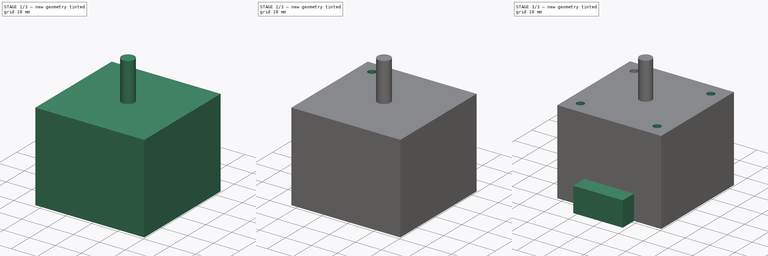
[diagram: build sequence overview — one tinted view per stage of 3, left to right]
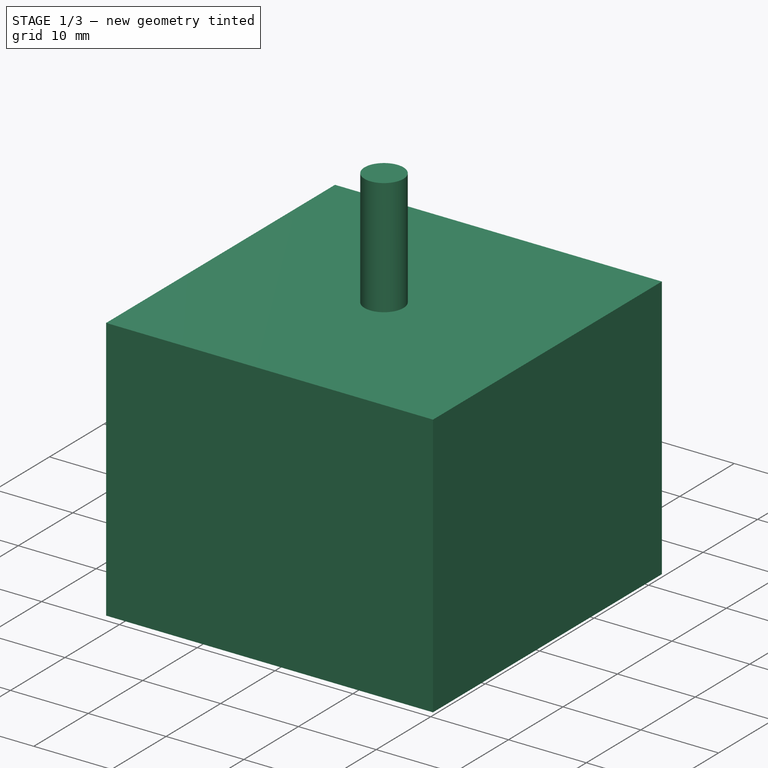
[diagram: stage 1 of 3 — iso view after this stage's code; geometry added in this stage tinted green]
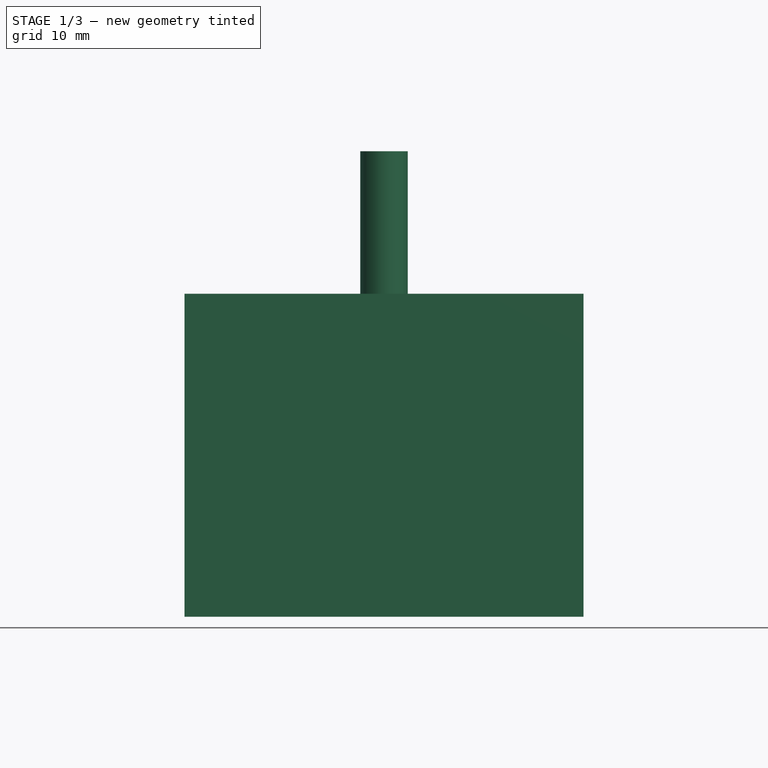
[diagram: stage 1 of 3 — front view after this stage's code; geometry added in this stage tinted green]
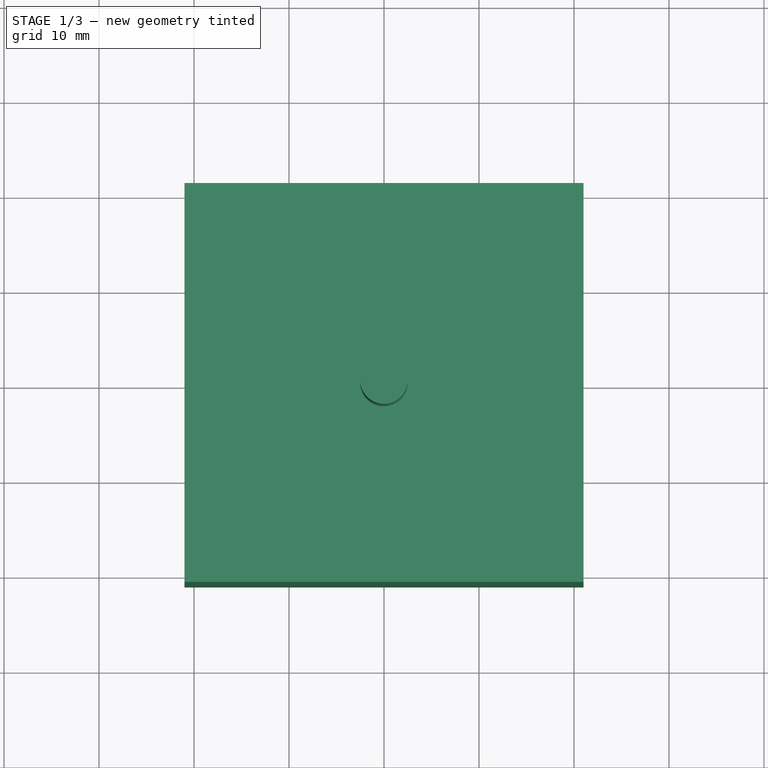
[diagram: stage 1 of 3 — top view after this stage's code; geometry added in this stage tinted green]
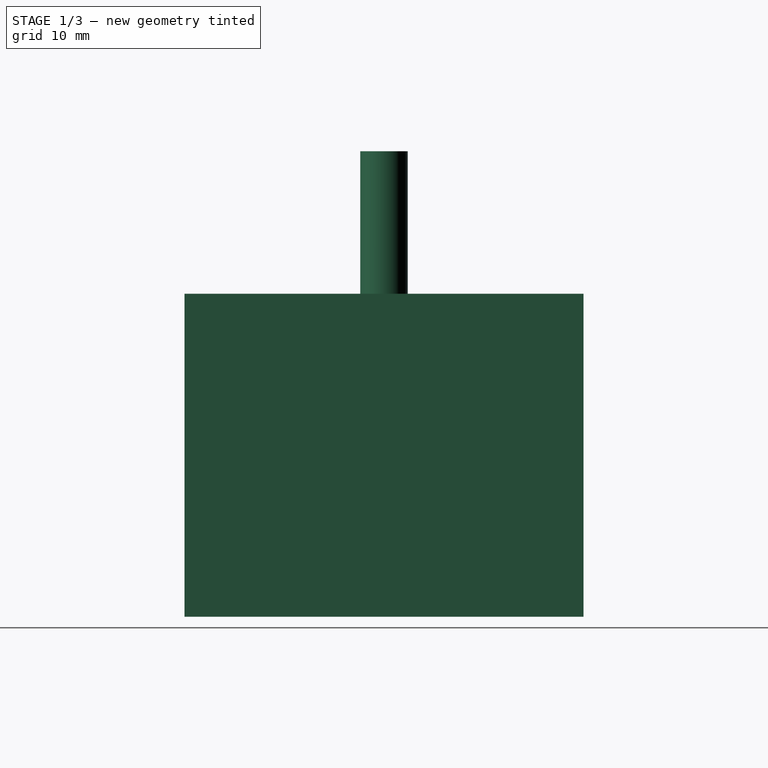
[diagram: stage 1 of 3 — right view after this stage's code; geometry added in this stage tinted green]
FCSTD DOCUMENT  (FreeCAD 1.0R39319 (Git))
Label: MainStepper
License: All rights reserved
LicenseURL: https://en.wikipedia.org/wiki/All_rights_reserved
objects: Sketcher::SketchObject×4, PartDesign::Pad×3, PartDesign::Pocket×1, PartDesign::PolarPattern×1, PartDesign::Body×1, App::Link×1, App::LinkGroup×1
note: 23 computed .brp shape members not serialized (recipe doc carries the construction recipe); baked Part::Feature solids carry a one-line shape summary decoded from their .brp
EXTERNAL_REF file=GT2_20.FCStd obj=Gear

FEATURE [Sketcher::SketchObject] Sketch007
  ArcFitTolerance = 1e-06
  AttachmentSupport = -> [XY_Plane001]
  FullyConstrained = true
  MakeInternals = false
  MapMode = 5
  sketch-geometry (5):
    g0: LineSegment StartX=21 StartY=-21 StartZ=0 EndX=21 EndY=21 EndZ=0
    g1: LineSegment StartX=21 StartY=21 StartZ=0 EndX=-21 EndY=21 EndZ=0
    g2: LineSegment StartX=-21 StartY=21 StartZ=0 EndX=-21 EndY=-21 EndZ=0
    g3: LineSegment StartX=-21 StartY=-21 StartZ=0 EndX=21 EndY=-21 EndZ=0
    g4: GeomPoint [constr] X=0 Y=0 Z=0
  constraints (12):
    c: Coincident(g0,g1)
    c: Coincident(g1,g2)
    c: Coincident(g2,g3)
    c: Coincident(g3,g0)
    c: Vertical(g0)
    c: Vertical(g2)
    c: Horizontal(g1)
    c: Horizontal(g3)
    c: Symmetric(g2,g0,g4)
    c: Coincident(g4,g-1)
    c: Distance(g-1,g1) = 21
    c: Distance(g-2,g2) = 21
FEATURE [PartDesign::Pad] Pad005
  Direction = (0,0,1)
  Length = 34
  Length2 = 10
  Profile = -> Sketch007
  ReferenceAxis = -> Sketch007 [N_Axis]
  Refine = true
  Suppressed = false
  Type = 0
FEATURE [Sketcher::SketchObject] Sketch008
  ArcFitTolerance = 1e-06
  AttachmentSupport = -> [Pad005]
  FullyConstrained = true
  MakeInternals = false
  MapMode = 5
  Placement = pos=(0,0,34) rot=(0,0,1;0rad)
  sketch-geometry (1):
    g0: Circle CenterX=0 CenterY=0 CenterZ=0 NormalX=0 NormalY=0 NormalZ=1 AngleXU=0 Radius=2.5
  constraints (2):
    c: Coincident(g0,g-1)
    c: Diameter(g0) = 5
FEATURE [PartDesign::Pad] Pad006
  BaseFeature = -> Pad005
  Direction = (0,0,1)
  Length = 15
  Length2 = 10
  Profile = -> Sketch008
  ReferenceAxis = -> Sketch008 [N_Axis]
  Refine = true
  Suppressed = false
  Type = 0
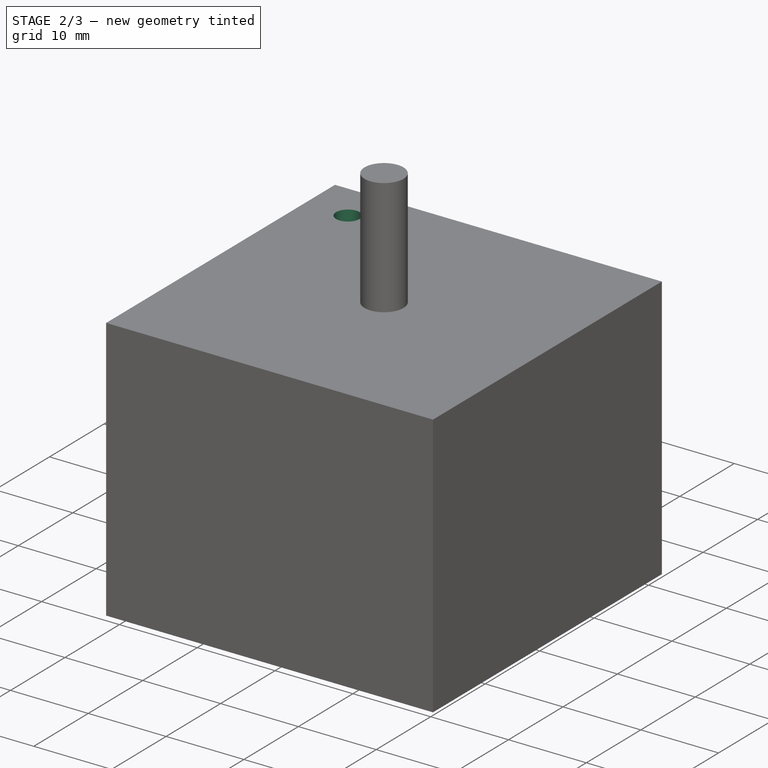
[diagram: stage 2 of 3 — iso view after this stage's code; geometry added in this stage tinted green]
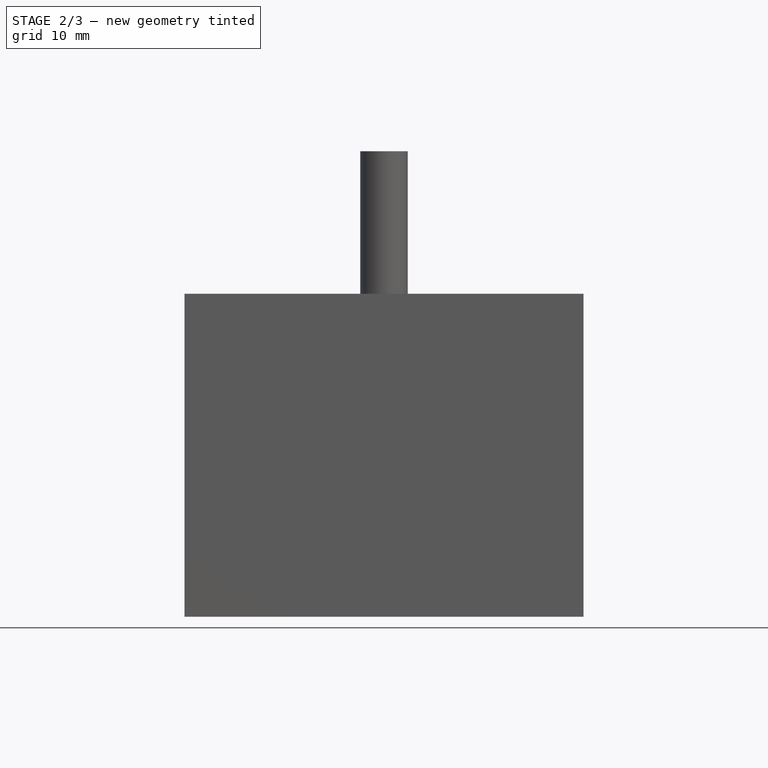
[diagram: stage 2 of 3 — front view after this stage's code; geometry added in this stage tinted green]
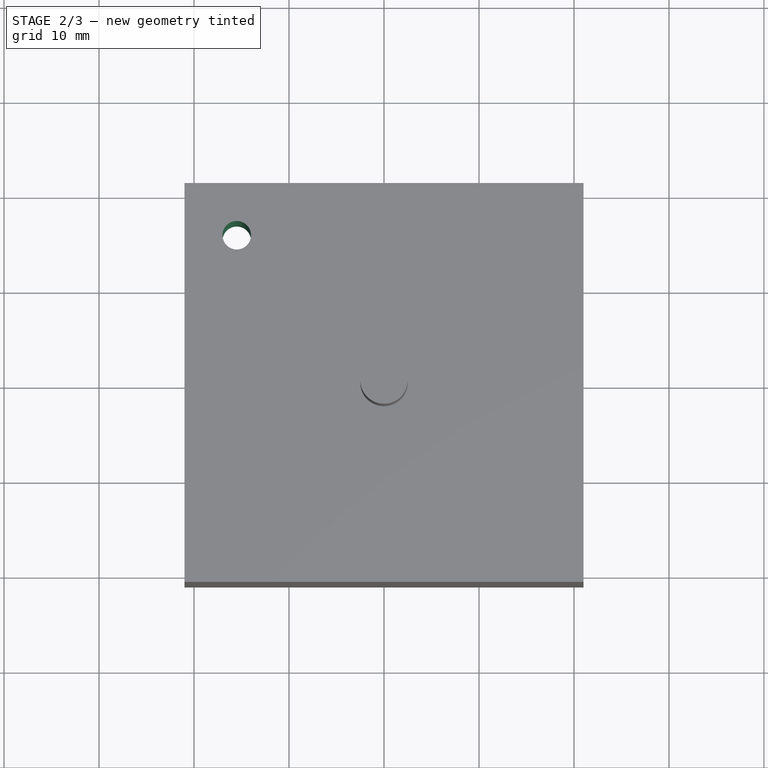
[diagram: stage 2 of 3 — top view after this stage's code; geometry added in this stage tinted green]
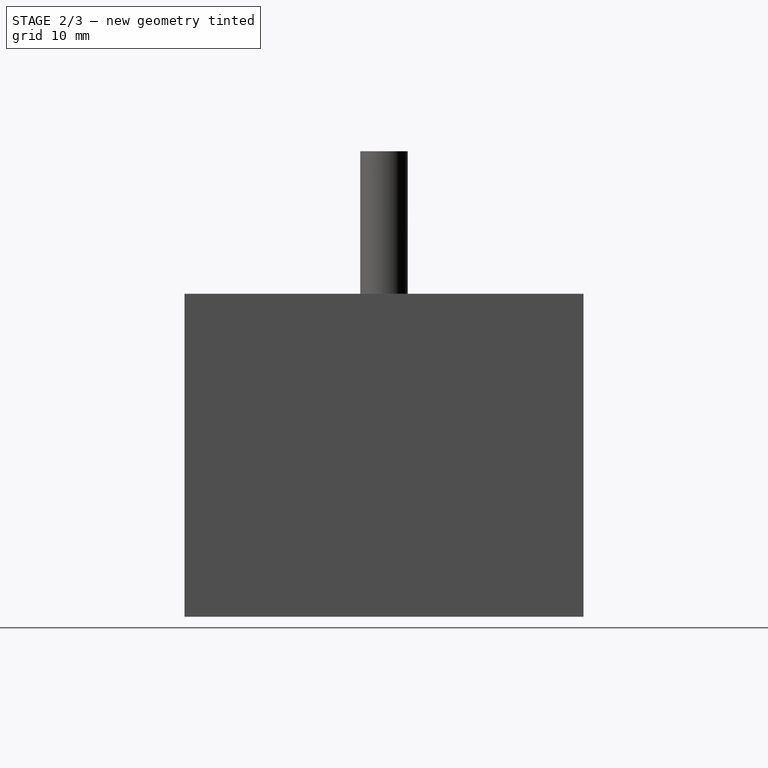
[diagram: stage 2 of 3 — right view after this stage's code; geometry added in this stage tinted green]
FEATURE [Sketcher::SketchObject] Sketch009
  ArcFitTolerance = 1e-06
  AttachmentSupport = -> [Pad006]
  FullyConstrained = true
  MakeInternals = false
  MapMode = 5
  Placement = pos=(0,0,34) rot=(0,0,1;0rad)
  sketch-geometry (1):
    g0: Circle CenterX=-15.5 CenterY=15.5 CenterZ=0 NormalX=0 NormalY=0 NormalZ=1 AngleXU=0 Radius=1.5
  constraints (3):
    c: Distance(g0,g-2) = 15.5
    c: DistanceY(g-1,g0) = 15.5
    c: Diameter(g0) = 3
FEATURE [PartDesign::Pocket] Pocket002
  BaseFeature = -> Pad006
  Direction = (0,0,-1)
  Length = 5
  Length2 = 5
  Profile = -> Sketch009
  ReferenceAxis = -> Sketch009 [N_Axis]
  Refine = true
  Suppressed = false
  Type = 1
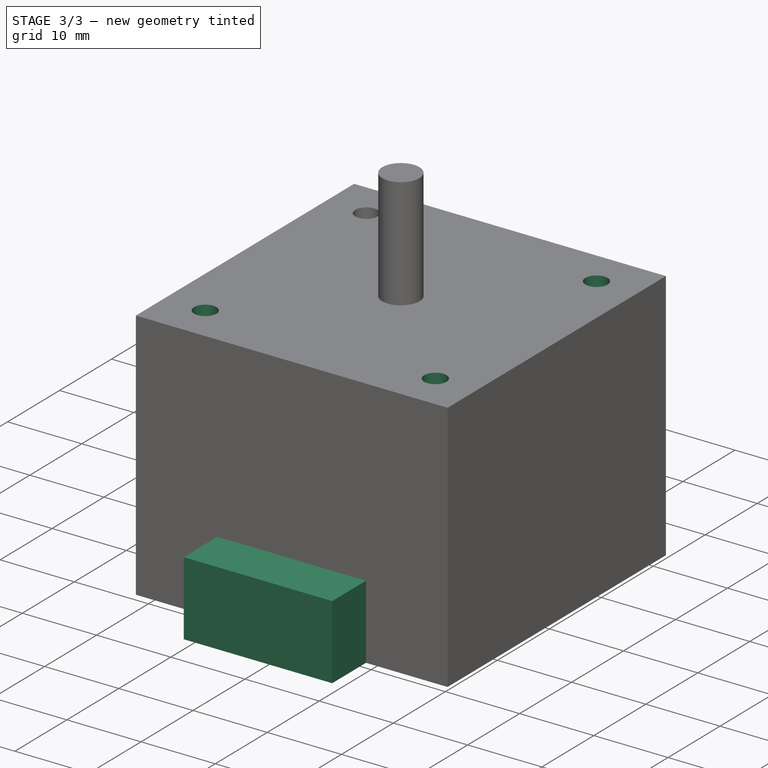
[diagram: stage 3 of 3 — iso view after this stage's code; geometry added in this stage tinted green]
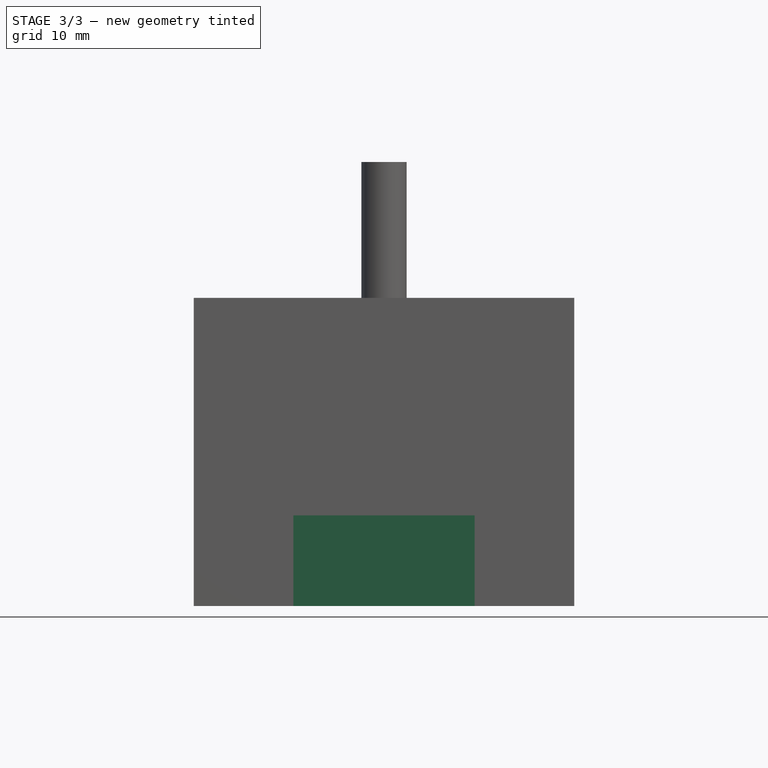
[diagram: stage 3 of 3 — front view after this stage's code; geometry added in this stage tinted green]
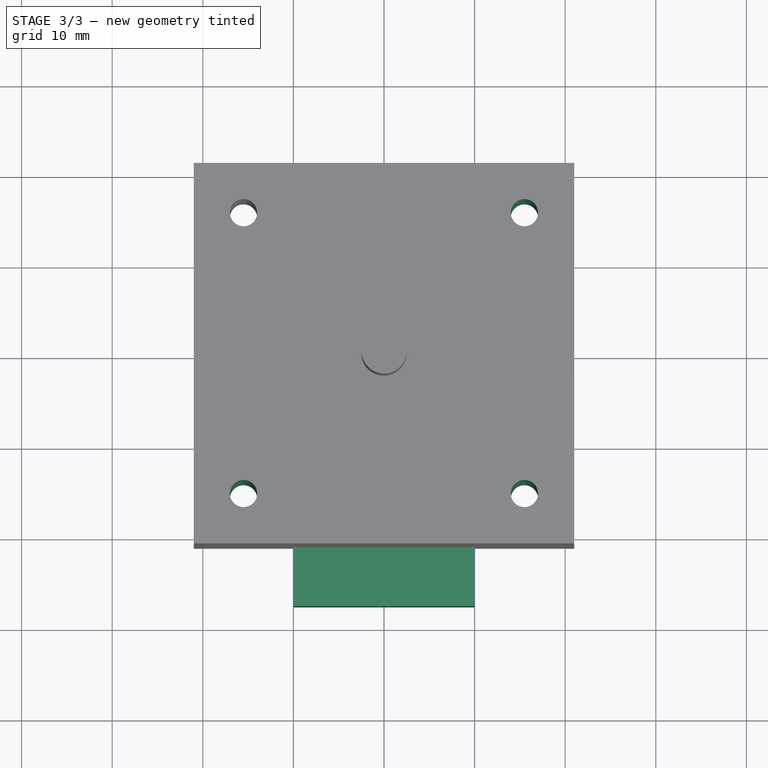
[diagram: stage 3 of 3 — top view after this stage's code; geometry added in this stage tinted green]
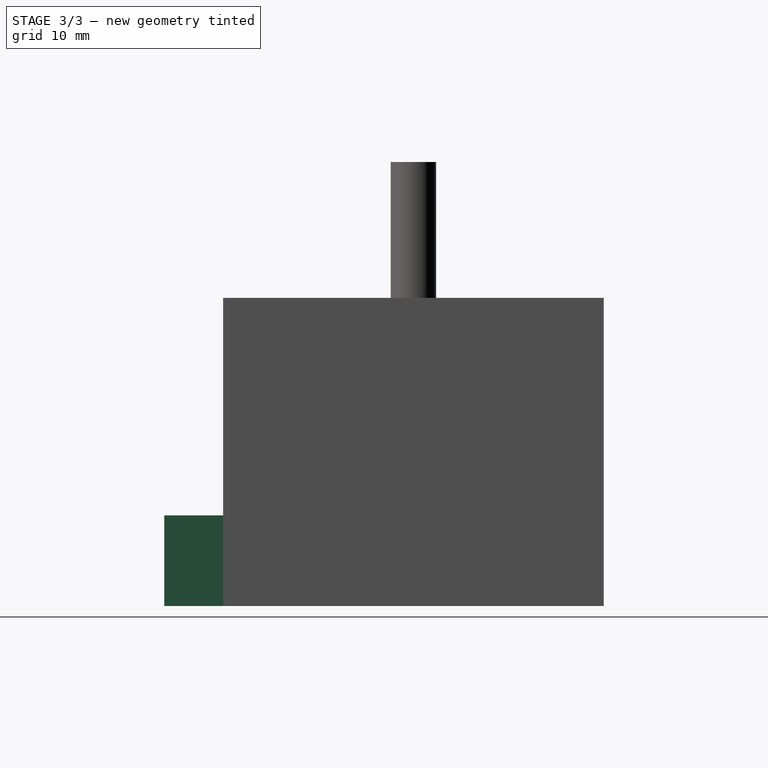
[diagram: stage 3 of 3 — right view after this stage's code; geometry added in this stage tinted green]
FEATURE [PartDesign::PolarPattern] PolarPattern
  Angle = 360
  Axis = -> Sketch009 [N_Axis]
  BaseFeature = -> Pocket002
  Mode = 0
  Occurrences = 4
  Offset = 120
  Originals = -> [Pocket002]
  Refine = true
  Suppressed = false
  TransformMode = 0
FEATURE [Sketcher::SketchObject] Sketch010
  ArcFitTolerance = 1e-06
  AttachmentSupport = -> [PolarPattern]
  ExternalGeometry = -> [Sketch007]
  FullyConstrained = false
  MakeInternals = false
  MapMode = 5
  Placement = pos=(0,0,0) rot=(1,0,0;3.14159rad)
  sketch-geometry (5):
    g0: LineSegment StartX=-10 StartY=14.4954 StartZ=0 EndX=10 EndY=14.4954 EndZ=0
    g1: LineSegment StartX=10 StartY=14.4954 StartZ=0 EndX=10 EndY=27.4954 EndZ=0
    g2: LineSegment StartX=10 StartY=27.4954 StartZ=0 EndX=-10 EndY=27.4954 EndZ=0
    g3: LineSegment StartX=-10 StartY=27.4954 StartZ=0 EndX=-10 EndY=14.4954 EndZ=0
    g4: GeomPoint [constr] X=0 Y=20.9954 Z=0
  constraints (12):
    c: Coincident(g0,g1)
    c: Coincident(g1,g2)
    c: Coincident(g2,g3)
    c: Coincident(g3,g0)
    c: Horizontal(g0)
    c: Horizontal(g2)
    c: Vertical(g1)
    c: Vertical(g3)
    c: Symmetric(g2,g0,g4)
    c: Distance(g1,g3) = 20
    c: Distance(g0,g2) = 13
    c: PointOnObject(g4,g-2)
FEATURE [PartDesign::Pad] Pad
  BaseFeature = -> PolarPattern
  Direction = (0,0,-1)
  Length = 10
  Length2 = 10
  Profile = -> Sketch010
  ReferenceAxis = -> Sketch010 [N_Axis]
  Refine = true
  Reversed = true
  Suppressed = false
  Type = 0
FEATURE [PartDesign::Body] Body001  label="Nema17"
  AllowCompound = false
  Group = -> [Sketch007,Pad005,Sketch008,Pad006,Sketch009,Pocket002,PolarPattern,Sketch010,Pad]
  Origin = -> Origin001
  Placement = pos=(0,0,0) rot=(0,0,1;3.14159rad)
  Tip = -> Pad
FEATURE [App::Link] Link  label="GT2_Second_Min"
  LinkPlacement = pos=(0,0,36) rot=(0,0,1;0rad)
  LinkedObject = -> <external GT2_20.FCStd>#Gear
  Placement = pos=(0,0,36) rot=(0,0,1;0rad)
FEATURE [App::LinkGroup] LinkGroup  label="MainStepper"
  ElementList = -> [Body001,Link]
  LinkMode = 0

RESOLVED EXTERNAL PARTS (link-assembly join: the EXTERNAL_REF files above that resolve inside this repo's crawl, each included once):
---- part GT2_20.FCStd = doc fcstd_1a6df01b9b0f ----
FCSTD DOCUMENT  (FreeCAD 1.0R39319 (Git))
Label: GT2_20
License: All rights reserved
LicenseURL: https://en.wikipedia.org/wiki/All_rights_reserved
objects: Sketcher::SketchObject×3, PartDesign::Pad×3, PartDesign::Body×1
note: 16 computed .brp shape members not serialized (recipe doc carries the construction recipe); baked Part::Feature solids carry a one-line shape summary decoded from their .brp

FEATURE [Sketcher::SketchObject] SketchGear
  ArcFitTolerance = 1e-06
  FullyConstrained = false
  MakeInternals = false
  MapMode = 5
  Placement = pos=(0,0,7.5) rot=(0,0,1;0rad)
  sketch-geometry (121):
    g0: ArcOfCircle CenterX=5.9622 CenterY=-0.75 CenterZ=0 NormalX=0 NormalY=0 NormalZ=1 AngleXU=8.1e-15 Radius=0.15 StartAngle=0 EndAngle=1.5708
    g1: ArcOfCircle CenterX=6.30816 CenterY=0.82798 CenterZ=0 NormalX=0 NormalY=0 NormalZ=-1 AngleXU=-1.3331 Radius=1.46929 StartAngle=0 EndAngle=0.255762
    g2: ArcOfCircle CenterX=5.92156 CenterY=0 CenterZ=0 NormalX=0 NormalY=0 NormalZ=-1 AngleXU=-0.984764 Radius=0.559359 StartAngle=0 EndAngle=1.96953
    g3: ArcOfCircle CenterX=6.30816 CenterY=-0.82798 CenterZ=0 NormalX=0 NormalY=0 NormalZ=-1 AngleXU=1.07734 Radius=1.46929 StartAngle=0 EndAngle=0.255762
    g4: ArcOfCircle CenterX=5.9622 CenterY=0.75 CenterZ=0 NormalX=0 NormalY=0 NormalZ=1 AngleXU=-1.5708 Radius=0.15 StartAngle=0 EndAngle=1.5708
    g5: LineSegment StartX=6.1122 StartY=0.75 StartZ=0 EndX=6.04481 EndY=1.17548 EndZ=0
    g6: ArcOfCircle CenterX=5.90215 CenterY=1.12913 CenterZ=0 NormalX=0 NormalY=0 NormalZ=1 AngleXU=0.314159 Radius=0.15 StartAngle=0 EndAngle=1.5708
    g7: ArcOfCircle CenterX=5.74356 CenterY=2.73679 CenterZ=0 NormalX=0 NormalY=0 NormalZ=-1 AngleXU=-1.64726 Radius=1.46929 StartAngle=0 EndAngle=0.255762
    g8: ArcOfCircle CenterX=5.63174 CenterY=1.82986 CenterZ=0 NormalX=0 NormalY=0 NormalZ=-1 AngleXU=-1.29892 Radius=0.559359 StartAngle=0 EndAngle=1.96953
    g9: ArcOfCircle CenterX=6.25528 CenterY=1.16187 CenterZ=0 NormalX=0 NormalY=0 NormalZ=-1 AngleXU=0.763178 Radius=1.46929 StartAngle=0 EndAngle=0.255762
    g10: ArcOfCircle CenterX=5.43862 CenterY=2.55571 CenterZ=0 NormalX=0 NormalY=0 NormalZ=1 AngleXU=-1.25664 Radius=0.15 StartAngle=0 EndAngle=1.5708
    g11: LineSegment StartX=5.58128 StartY=2.60207 StartZ=0 EndX=5.38571 EndY=2.9859 EndZ=0
    g12: ArcOfCircle CenterX=5.26436 CenterY=2.89773 CenterZ=0 NormalX=0 NormalY=0 NormalZ=1 AngleXU=0.628319 Radius=0.15 StartAngle=0 EndAngle=1.5708
    g13: ArcOfCircle CenterX=4.61674 CenterY=4.3777 CenterZ=0 NormalX=0 NormalY=0 NormalZ=-1 AngleXU=-1.96142 Radius=1.46929 StartAngle=0 EndAngle=0.255762
    g14: ArcOfCircle CenterX=4.79064 CenterY=3.4806 CenterZ=0 NormalX=0 NormalY=0 NormalZ=-1 AngleXU=-1.61308 Radius=0.559359 StartAngle=0 EndAngle=1.96953
    g15: ArcOfCircle CenterX=5.59009 CenterY=3.038 CenterZ=0 NormalX=0 NormalY=0 NormalZ=-1 AngleXU=0.449019 Radius=1.46929 StartAngle=0 EndAngle=0.255762
    g16: ArcOfCircle CenterX=4.38268 CenterY=4.11125 CenterZ=0 NormalX=0 NormalY=0 NormalZ=1 AngleXU=-0.942478 Radius=0.15 StartAngle=0 EndAngle=1.5708
    g17: LineSegment StartX=4.50403 StartY=4.19942 StartZ=0 EndX=4.19942 EndY=4.50403 EndZ=0
    g18: ArcOfCircle CenterX=4.11125 CenterY=4.38268 CenterZ=0 NormalX=0 NormalY=0 NormalZ=1 AngleXU=0.942478 Radius=0.15 StartAngle=0 EndAngle=1.5708
    g19: ArcOfCircle CenterX=3.038 CenterY=5.59009 CenterZ=0 NormalX=0 NormalY=0 NormalZ=-1 AngleXU=-2.27558 Radius=1.46929 StartAngle=0 EndAngle=0.255762
    g20: ArcOfCircle CenterX=3.4806 CenterY=4.79064 CenterZ=0 NormalX=0 NormalY=0 NormalZ=-1 AngleXU=-1.92724 Radius=0.559359 StartAngle=0 EndAngle=1.96953
    g21: ArcOfCircle CenterX=4.3777 CenterY=4.61674 CenterZ=0 NormalX=0 NormalY=0 NormalZ=-1 AngleXU=0.13486 Radius=1.46929 StartAngle=0 EndAngle=0.255762
    g22: ArcOfCircle CenterX=2.89773 CenterY=5.26436 CenterZ=0 NormalX=0 NormalY=0 NormalZ=1 AngleXU=-0.628319 Radius=0.15 StartAngle=0 EndAngle=1.5708
    g23: LineSegment StartX=2.9859 StartY=5.38571 StartZ=0 EndX=2.60207 EndY=5.58128 EndZ=0
    g24: ArcOfCircle CenterX=2.55571 CenterY=5.43862 CenterZ=0 NormalX=0 NormalY=0 NormalZ=1 AngleXU=1.25664 Radius=0.15 StartAngle=0 EndAngle=1.5708
    g25: ArcOfCircle CenterX=1.16187 CenterY=6.25528 CenterZ=0 NormalX=0 NormalY=0 NormalZ=-1 AngleXU=-2.58974 Radius=1.46929 StartAngle=0 EndAngle=0.255762
    g26: ArcOfCircle CenterX=1.82986 CenterY=5.63174 CenterZ=0 NormalX=0 NormalY=0 NormalZ=-1 AngleXU=-2.2414 Radius=0.559359 StartAngle=0 EndAngle=1.96953
    g27: ArcOfCircle CenterX=2.73679 CenterY=5.74356 CenterZ=0 NormalX=0 NormalY=0 NormalZ=-1 AngleXU=-0.1793 Radius=1.46929 StartAngle=0 EndAngle=0.255762
    g28: ArcOfCircle CenterX=1.12913 CenterY=5.90215 CenterZ=0 NormalX=0 NormalY=0 NormalZ=1 AngleXU=-0.314159 Radius=0.15 StartAngle=0 EndAngle=1.5708
    g29: LineSegment StartX=1.17548 StartY=6.04481 StartZ=0 EndX=0.75 EndY=6.1122 EndZ=0
    g30: ArcOfCircle CenterX=0.75 CenterY=5.9622 CenterZ=0 NormalX=0 NormalY=0 NormalZ=1 AngleXU=1.5708 Radius=0.15 StartAngle=0 EndAngle=1.5708
    g31: ArcOfCircle CenterX=-0.82798 CenterY=6.30816 CenterZ=0 NormalX=0 NormalY=0 NormalZ=-1 AngleXU=-2.9039 Radius=1.46929 StartAngle=0 EndAngle=0.255762
    g32: ArcOfCircle CenterX=4e-16 CenterY=5.92156 CenterZ=0 NormalX=0 NormalY=0 NormalZ=-1 AngleXU=-2.55556 Radius=0.559359 StartAngle=0 EndAngle=1.96953
    g33: ArcOfCircle CenterX=0.82798 CenterY=6.30816 CenterZ=0 NormalX=0 NormalY=0 NormalZ=-1 AngleXU=-0.493459 Radius=1.46929 StartAngle=0 EndAngle=0.255762
    g34: ArcOfCircle CenterX=-0.75 CenterY=5.9622 CenterZ=0 NormalX=0 NormalY=0 NormalZ=1 AngleXU=5.9e-15 Radius=0.15 StartAngle=0 EndAngle=1.5708
    g35: LineSegment StartX=-0.75 StartY=6.1122 StartZ=0 EndX=-1.17548 EndY=6.04481 EndZ=0
    g36: ArcOfCircle CenterX=-1.12913 CenterY=5.90215 CenterZ=0 NormalX=0 NormalY=0 NormalZ=1 AngleXU=1.88496 Radius=0.15 StartAngle=0 EndAngle=1.5708
    g37: ArcOfCircle CenterX=-2.73679 CenterY=5.74356 CenterZ=0 NormalX=0 NormalY=0 NormalZ=-1 AngleXU=3.06513 Radius=1.46929 StartAngle=0 EndAngle=0.255762
    g38: ArcOfCircle CenterX=-1.82986 CenterY=5.63174 CenterZ=0 NormalX=0 NormalY=0 NormalZ=-1 AngleXU=-2.86972 Radius=0.559359 StartAngle=0 EndAngle=1.96953
    g39: ArcOfCircle CenterX=-1.16187 CenterY=6.25528 CenterZ=0 NormalX=0 NormalY=0 NormalZ=-1 AngleXU=-0.807618 Radius=1.46929 StartAngle=0 EndAngle=0.255762
    g40: ArcOfCircle CenterX=-2.55571 CenterY=5.43862 CenterZ=0 NormalX=0 NormalY=0 NormalZ=1 AngleXU=0.314159 Radius=0.15 StartAngle=0 EndAngle=1.5708
    g41: LineSegment StartX=-2.60207 StartY=5.58128 StartZ=0 EndX=-2.9859 EndY=5.38571 EndZ=0
    g42: ArcOfCircle CenterX=-2.89773 CenterY=5.26436 CenterZ=0 NormalX=0 NormalY=0 NormalZ=1 AngleXU=2.19911 Radius=0.15 StartAngle=0 EndAngle=1.5708
    g43: ArcOfCircle CenterX=-4.3777 CenterY=4.61674 CenterZ=0 NormalX=0 NormalY=0 NormalZ=-1 AngleXU=2.75097 Radius=1.46929 StartAngle=0 EndAngle=0.255762
    g44: ArcOfCircle CenterX=-3.4806 CenterY=4.79064 CenterZ=0 NormalX=0 NormalY=0 NormalZ=-1 AngleXU=3.09931 Radius=0.559359 StartAngle=0 EndAngle=1.96953
    g45: ArcOfCircle CenterX=-3.038 CenterY=5.59009 CenterZ=0 NormalX=0 NormalY=0 NormalZ=-1 AngleXU=-1.12178 Radius=1.46929 StartAngle=0 EndAngle=0.255762
    g46: ArcOfCircle CenterX=-4.11125 CenterY=4.38268 CenterZ=0 NormalX=0 NormalY=0 NormalZ=1 AngleXU=0.628319 Radius=0.15 StartAngle=0 EndAngle=1.5708
    g47: LineSegment StartX=-4.19942 StartY=4.50403 StartZ=0 EndX=-4.50403 EndY=4.19942 EndZ=0
    g48: ArcOfCircle CenterX=-4.38268 CenterY=4.11125 CenterZ=0 NormalX=0 NormalY=0 NormalZ=1 AngleXU=2.51327 Radius=0.15 StartAngle=0 EndAngle=1.5708
    g49: ArcOfCircle CenterX=-5.59009 CenterY=3.038 CenterZ=0 NormalX=0 NormalY=0 NormalZ=-1 AngleXU=2.43681 Radius=1.46929 StartAngle=0 EndAngle=0.255762
    g50: ArcOfCircle CenterX=-4.79064 CenterY=3.4806 CenterZ=0 NormalX=0 NormalY=0 NormalZ=-1 AngleXU=2.78515 Radius=0.559359 StartAngle=0 EndAngle=1.96953
    g51: ArcOfCircle CenterX=-4.61674 CenterY=4.3777 CenterZ=0 NormalX=0 NormalY=0 NormalZ=-1 AngleXU=-1.43594 Radius=1.46929 StartAngle=0 EndAngle=0.255762
    g52: ArcOfCircle CenterX=-5.26436 CenterY=2.89773 CenterZ=0 NormalX=0 NormalY=0 NormalZ=1 AngleXU=0.942478 Radius=0.15 StartAngle=0 EndAngle=1.5708
    g53: LineSegment StartX=-5.38571 StartY=2.9859 StartZ=0 EndX=-5.58128 EndY=2.60207 EndZ=0
    g54: ArcOfCircle CenterX=-5.43862 CenterY=2.55571 CenterZ=0 NormalX=0 NormalY=0 NormalZ=1 AngleXU=2.82743 Radius=0.15 StartAngle=0 EndAngle=1.5708
    g55: ArcOfCircle CenterX=-6.25528 CenterY=1.16187 CenterZ=0 NormalX=0 NormalY=0 NormalZ=-1 AngleXU=2.12265 Radius=1.46929 StartAngle=0 EndAngle=0.255762
    g56: ArcOfCircle CenterX=-5.63174 CenterY=1.82986 CenterZ=0 NormalX=0 NormalY=0 NormalZ=-1 AngleXU=2.47099 Radius=0.559359 StartAngle=0 EndAngle=1.96953
    g57: ArcOfCircle CenterX=-5.74356 CenterY=2.73679 CenterZ=0 NormalX=0 NormalY=0 NormalZ=-1 AngleXU=-1.7501 Radius=1.46929 StartAngle=0 EndAngle=0.255762
    g58: ArcOfCircle CenterX=-5.90215 CenterY=1.12913 CenterZ=0 NormalX=0 NormalY=0 NormalZ=1 AngleXU=1.25664 Radius=0.15 StartAngle=0 EndAngle=1.5708
    g59: LineSegment StartX=-6.04481 StartY=1.17548 StartZ=0 EndX=-6.1122 EndY=0.75 EndZ=0
    g60: ArcOfCircle CenterX=-5.9622 CenterY=0.75 CenterZ=0 NormalX=0 NormalY=0 NormalZ=1 AngleXU=-3.14159 Radius=0.15 StartAngle=0 EndAngle=1.5708
    g61: ArcOfCircle CenterX=-6.30816 CenterY=-0.82798 CenterZ=0 NormalX=0 NormalY=0 NormalZ=-1 AngleXU=1.80849 Radius=1.46929 StartAngle=0 EndAngle=0.255762
    g62: ArcOfCircle CenterX=-5.92156 CenterY=9e-16 CenterZ=0 NormalX=0 NormalY=0 NormalZ=-1 AngleXU=2.15683 Radius=0.559359 StartAngle=0 EndAngle=1.96953
    g63: ArcOfCircle CenterX=-6.30816 CenterY=0.82798 CenterZ=0 NormalX=0 NormalY=0 NormalZ=-1 AngleXU=-2.06426 Radius=1.46929 StartAngle=0 EndAngle=0.255762
    g64: ArcOfCircle CenterX=-5.9622 CenterY=-0.75 CenterZ=0 NormalX=0 NormalY=0 NormalZ=1 AngleXU=1.5708 Radius=0.15 StartAngle=0 EndAngle=1.5708
    g65: LineSegment StartX=-6.1122 StartY=-0.75 StartZ=0 EndX=-6.04481 EndY=-1.17548 EndZ=0
    g66: ArcOfCircle CenterX=-5.90215 CenterY=-1.12913 CenterZ=0 NormalX=0 NormalY=0 NormalZ=1 AngleXU=-2.82743 Radius=0.15 StartAngle=0 EndAngle=1.5708
    g67: ArcOfCircle CenterX=-5.74356 CenterY=-2.73679 CenterZ=0 NormalX=0 NormalY=0 NormalZ=-1 AngleXU=1.49433 Radius=1.46929 StartAngle=0 EndAngle=0.255762
    g68: ArcOfCircle CenterX=-5.63174 CenterY=-1.82986 CenterZ=0 NormalX=0 NormalY=0 NormalZ=-1 AngleXU=1.84267 Radius=0.559359 StartAngle=0 EndAngle=1.96953
    g69: ArcOfCircle CenterX=-6.25528 CenterY=-1.16187 CenterZ=0 NormalX=0 NormalY=0 NormalZ=-1 AngleXU=-2.37841 Radius=1.46929 StartAngle=0 EndAngle=0.255762
    g70: ArcOfCircle CenterX=-5.43862 CenterY=-2.55571 CenterZ=0 NormalX=0 NormalY=0 NormalZ=1 AngleXU=1.88496 Radius=0.15 StartAngle=0 EndAngle=1.5708
    g71: LineSegment StartX=-5.58128 StartY=-2.60207 StartZ=0 EndX=-5.38571 EndY=-2.9859 EndZ=0
    g72: ArcOfCircle CenterX=-5.26436 CenterY=-2.89773 CenterZ=0 NormalX=0 NormalY=0 NormalZ=1 AngleXU=-2.51327 Radius=0.15 StartAngle=0 EndAngle=1.5708
    g73: ArcOfCircle CenterX=-4.61674 CenterY=-4.3777 CenterZ=0 NormalX=0 NormalY=0 NormalZ=-1 AngleXU=1.18017 Radius=1.46929 StartAngle=0 EndAngle=0.255762
    g74: ArcOfCircle CenterX=-4.79064 CenterY=-3.4806 CenterZ=0 NormalX=0 NormalY=0 NormalZ=-1 AngleXU=1.52851 Radius=0.559359 StartAngle=0 EndAngle=1.96953
    g75: ArcOfCircle CenterX=-5.59009 CenterY=-3.038 CenterZ=0 NormalX=0 NormalY=0 NormalZ=-1 AngleXU=-2.69257 Radius=1.46929 StartAngle=0 EndAngle=0.255762
    g76: ArcOfCircle CenterX=-4.38268 CenterY=-4.11125 CenterZ=0 NormalX=0 NormalY=0 NormalZ=1 AngleXU=2.19911 Radius=0.15 StartAngle=0 EndAngle=1.5708
    g77: LineSegment StartX=-4.50403 StartY=-4.19942 StartZ=0 EndX=-4.19942 EndY=-4.50403 EndZ=0
    g78: ArcOfCircle CenterX=-4.11125 CenterY=-4.38268 CenterZ=0 NormalX=0 NormalY=0 NormalZ=1 AngleXU=-2.19911 Radius=0.15 StartAngle=0 EndAngle=1.5708
    g79: ArcOfCircle CenterX=-3.038 CenterY=-5.59009 CenterZ=0 NormalX=0 NormalY=0 NormalZ=-1 AngleXU=0.866016 Radius=1.46929 StartAngle=0 EndAngle=0.255762
    g80: ArcOfCircle CenterX=-3.4806 CenterY=-4.79064 CenterZ=0 NormalX=0 NormalY=0 NormalZ=-1 AngleXU=1.21435 Radius=0.559359 StartAngle=0 EndAngle=1.96953
    g81: ArcOfCircle CenterX=-4.3777 CenterY=-4.61674 CenterZ=0 NormalX=0 NormalY=0 NormalZ=-1 AngleXU=-3.00673 Radius=1.46929 StartAngle=0 EndAngle=0.255762
    g82: ArcOfCircle CenterX=-2.89773 CenterY=-5.26436 CenterZ=0 NormalX=0 NormalY=0 NormalZ=1 AngleXU=2.51327 Radius=0.15 StartAngle=0 EndAngle=1.5708
    g83: LineSegment StartX=-2.9859 StartY=-5.38571 StartZ=0 EndX=-2.60207 EndY=-5.58128 EndZ=0
    g84: ArcOfCircle CenterX=-2.55571 CenterY=-5.43862 CenterZ=0 NormalX=0 NormalY=0 NormalZ=1 AngleXU=-1.88496 Radius=0.15 StartAngle=0 EndAngle=1.5708
    g85: ArcOfCircle CenterX=-1.16187 CenterY=-6.25528 CenterZ=0 NormalX=0 NormalY=0 NormalZ=-1 AngleXU=0.551856 Radius=1.46929 StartAngle=0 EndAngle=0.255762
    g86: ArcOfCircle CenterX=-1.82986 CenterY=-5.63174 CenterZ=0 NormalX=0 NormalY=0 NormalZ=-1 AngleXU=0.900192 Radius=0.559359 StartAngle=0 EndAngle=1.96953
    g87: ArcOfCircle CenterX=-2.73679 CenterY=-5.74356 CenterZ=0 NormalX=0 NormalY=0 NormalZ=-1 AngleXU=2.96229 Radius=1.46929 StartAngle=0 EndAngle=0.255762
    g88: ArcOfCircle CenterX=-1.12913 CenterY=-5.90215 CenterZ=0 NormalX=0 NormalY=0 NormalZ=1 AngleXU=2.82743 Radius=0.15 StartAngle=0 EndAngle=1.5708
    g89: LineSegment StartX=-1.17548 StartY=-6.04481 StartZ=0 EndX=-0.75 EndY=-6.1122 EndZ=0
    g90: ArcOfCircle CenterX=-0.75 CenterY=-5.9622 CenterZ=0 NormalX=0 NormalY=0 NormalZ=1 AngleXU=-1.5708 Radius=0.15 StartAngle=0 EndAngle=1.5708
    g91: ArcOfCircle CenterX=0.82798 CenterY=-6.30816 CenterZ=0 NormalX=0 NormalY=0 NormalZ=-1 AngleXU=0.237697 Radius=1.46929 StartAngle=0 EndAngle=0.255762
    g92: ArcOfCircle CenterX=-9e-16 CenterY=-5.92156 CenterZ=0 NormalX=0 NormalY=0 NormalZ=-1 AngleXU=0.586033 Radius=0.559359 StartAngle=0 EndAngle=1.96953
    g93: ArcOfCircle CenterX=-0.82798 CenterY=-6.30816 CenterZ=0 NormalX=0 NormalY=0 NormalZ=-1 AngleXU=2.64813 Radius=1.46929 StartAngle=0 EndAngle=0.255762
    g94: ArcOfCircle CenterX=0.75 CenterY=-5.9622 CenterZ=0 NormalX=0 NormalY=0 NormalZ=1 AngleXU=-3.14159 Radius=0.15 StartAngle=0 EndAngle=1.5708
    g95: LineSegment StartX=0.75 StartY=-6.1122 StartZ=0 EndX=1.17548 EndY=-6.04481 EndZ=0
    g96: ArcOfCircle CenterX=1.12913 CenterY=-5.90215 CenterZ=0 NormalX=0 NormalY=0 NormalZ=1 AngleXU=-1.25664 Radius=0.15 StartAngle=0 EndAngle=1.5708
    g97: ArcOfCircle CenterX=2.73679 CenterY=-5.74356 CenterZ=0 NormalX=0 NormalY=0 NormalZ=-1 AngleXU=-0.0764622 Radius=1.46929 StartAngle=0 EndAngle=0.255762
    g98: ArcOfCircle CenterX=1.82986 CenterY=-5.63174 CenterZ=0 NormalX=0 NormalY=0 NormalZ=-1 AngleXU=0.271874 Radius=0.559359 StartAngle=0 EndAngle=1.96953
    g99: ArcOfCircle CenterX=1.16187 CenterY=-6.25528 CenterZ=0 NormalX=0 NormalY=0 NormalZ=-1 AngleXU=2.33397 Radius=1.46929 StartAngle=0 EndAngle=0.255762
    g100: ArcOfCircle CenterX=2.55571 CenterY=-5.43862 CenterZ=0 NormalX=0 NormalY=0 NormalZ=1 AngleXU=-2.82743 Radius=0.15 StartAngle=0 EndAngle=1.5708
    g101: LineSegment StartX=2.60207 StartY=-5.58128 StartZ=0 EndX=2.9859 EndY=-5.38571 EndZ=0
    g102: ArcOfCircle CenterX=2.89773 CenterY=-5.26436 CenterZ=0 NormalX=0 NormalY=0 NormalZ=1 AngleXU=-0.942478 Radius=0.15 StartAngle=0 EndAngle=1.5708
    g103: ArcOfCircle CenterX=4.3777 CenterY=-4.61674 CenterZ=0 NormalX=0 NormalY=0 NormalZ=-1 AngleXU=-0.390621 Radius=1.46929 StartAngle=0 EndAngle=0.255762
    g104: ArcOfCircle CenterX=3.4806 CenterY=-4.79064 CenterZ=0 NormalX=0 NormalY=0 NormalZ=-1 AngleXU=-0.0422858 Radius=0.559359 StartAngle=0 EndAngle=1.96953
    g105: ArcOfCircle CenterX=3.038 CenterY=-5.59009 CenterZ=0 NormalX=0 NormalY=0 NormalZ=-1 AngleXU=2.01982 Radius=1.46929 StartAngle=0 EndAngle=0.255762
    g106: ArcOfCircle CenterX=4.11125 CenterY=-4.38268 CenterZ=0 NormalX=0 NormalY=0 NormalZ=1 AngleXU=-2.51327 Radius=0.15 StartAngle=0 EndAngle=1.5708
    g107: LineSegment StartX=4.19942 StartY=-4.50403 StartZ=0 EndX=4.50403 EndY=-4.19942 EndZ=0
    g108: ArcOfCircle CenterX=4.38268 CenterY=-4.11125 CenterZ=0 NormalX=0 NormalY=0 NormalZ=1 AngleXU=-0.628319 Radius=0.15 StartAngle=0 EndAngle=1.5708
    g109: ArcOfCircle CenterX=5.59009 CenterY=-3.038 CenterZ=0 NormalX=0 NormalY=0 NormalZ=-1 AngleXU=-0.704781 Radius=1.46929 StartAngle=0 EndAngle=0.255762
    g110: ArcOfCircle CenterX=4.79064 CenterY=-3.4806 CenterZ=0 NormalX=0 NormalY=0 NormalZ=-1 AngleXU=-0.356445 Radius=0.559359 StartAngle=0 EndAngle=1.96953
    g111: ArcOfCircle CenterX=4.61674 CenterY=-4.3777 CenterZ=0 NormalX=0 NormalY=0 NormalZ=-1 AngleXU=1.70566 Radius=1.46929 StartAngle=0 EndAngle=0.255762
    g112: ArcOfCircle CenterX=5.26436 CenterY=-2.89773 CenterZ=0 NormalX=0 NormalY=0 NormalZ=1 AngleXU=-2.19911 Radius=0.15 StartAngle=0 EndAngle=1.5708
    g113: LineSegment StartX=5.38571 StartY=-2.9859 StartZ=0 EndX=5.58128 EndY=-2.60207 EndZ=0
    g114: ArcOfCircle CenterX=5.43862 CenterY=-2.55571 CenterZ=0 NormalX=0 NormalY=0 NormalZ=1 AngleXU=-0.314159 Radius=0.15 StartAngle=0 EndAngle=1.5708
    g115: ArcOfCircle CenterX=6.25528 CenterY=-1.16187 CenterZ=0 NormalX=0 NormalY=0 NormalZ=-1 AngleXU=-1.01894 Radius=1.46929 StartAngle=0 EndAngle=0.255762
    g116: ArcOfCircle CenterX=5.63174 CenterY=-1.82986 CenterZ=0 NormalX=0 NormalY=0 NormalZ=-1 AngleXU=-0.670604 Radius=0.559359 StartAngle=0 EndAngle=1.96953
    g117: ArcOfCircle CenterX=5.74356 CenterY=-2.73679 CenterZ=0 NormalX=0 NormalY=0 NormalZ=-1 AngleXU=1.3915 Radius=1.46929 StartAngle=0 EndAngle=0.255762
    g118: ArcOfCircle CenterX=5.90215 CenterY=-1.12913 CenterZ=0 NormalX=0 NormalY=0 NormalZ=1 AngleXU=-1.88496 Radius=0.15 StartAngle=0 EndAngle=1.5708
    g119: LineSegment StartX=6.04481 StartY=-1.17548 StartZ=0 EndX=6.1122 EndY=-0.75 EndZ=0
    g120: Circle CenterX=0 CenterY=0 CenterZ=0 NormalX=0 NormalY=0 NormalZ=1 AngleXU=0 Radius=2.5
FEATURE [PartDesign::Pad] Pad
  Direction = (0,0,1)
  Length = 7.5
  Length2 = 10
  Placement = pos=(0,0,7.5) rot=(0,0,1;0rad)
  Profile = -> SketchGear
  ReferenceAxis = -> SketchGear [N_Axis]
  Refine = true
  Suppressed = false
  Type = 0
FEATURE [Sketcher::SketchObject] SketchBase
  ArcFitTolerance = 1e-06
  AttachmentOffset = pos=(0,0,-1) rot=(0,0,1;0rad)
  FullyConstrained = false
  MakeInternals = false
  MapMode = 5
  sketch-geometry (2):
    g0: Circle CenterX=0 CenterY=0 CenterZ=0 NormalX=0 NormalY=0 NormalZ=1 AngleXU=0 Radius=8
    g1: Circle CenterX=0 CenterY=0 CenterZ=0 NormalX=0 NormalY=0 NormalZ=1 AngleXU=0 Radius=2.5
  constraints (1):
    c: Diameter(g0) = 16
FEATURE [PartDesign::Pad] PadBase
  BaseFeature = -> Pad
  Direction = (0,0,1)
  Length = 7.5
  Length2 = 10
  Placement = pos=(0,0,7.5) rot=(0,0,1;0rad)
  Profile = -> SketchBase
  ReferenceAxis = -> SketchBase [N_Axis]
  Refine = true
  Suppressed = false
  Type = 0
FEATURE [Sketcher::SketchObject] SketchTop
  ArcFitTolerance = 1e-06
  AttachmentOffset = pos=(0,0,16) rot=(0,0,1;0rad)
  FullyConstrained = false
  MakeInternals = false
  MapMode = 5
  Placement = pos=(0,0,15) rot=(0,0,1;0rad)
  sketch-geometry (2):
    g0: Circle CenterX=0 CenterY=0 CenterZ=0 NormalX=0 NormalY=0 NormalZ=1 AngleXU=0 Radius=8
    g1: Circle CenterX=0 CenterY=0 CenterZ=0 NormalX=0 NormalY=0 NormalZ=1 AngleXU=0 Radius=2.5
  constraints (1):
    c: Diameter(g0) = 16
FEATURE [PartDesign::Pad] PadTop
  BaseFeature = -> PadBase
  Direction = (0,0,1)
  Length = 1
  Length2 = 10
  Placement = pos=(0,0,7.5) rot=(0,0,1;0rad)
  Profile = -> SketchTop
  ReferenceAxis = -> SketchTop [N_Axis]
  Refine = true
  Suppressed = false
  Type = 0
FEATURE [PartDesign::Body] Gear  label="GT2_Second_Min"
  AllowCompound = false
  Group = -> [SketchGear,Pad,SketchBase,PadBase,SketchTop,PadTop]
  Origin = -> Origin
  Tip = -> PadTop
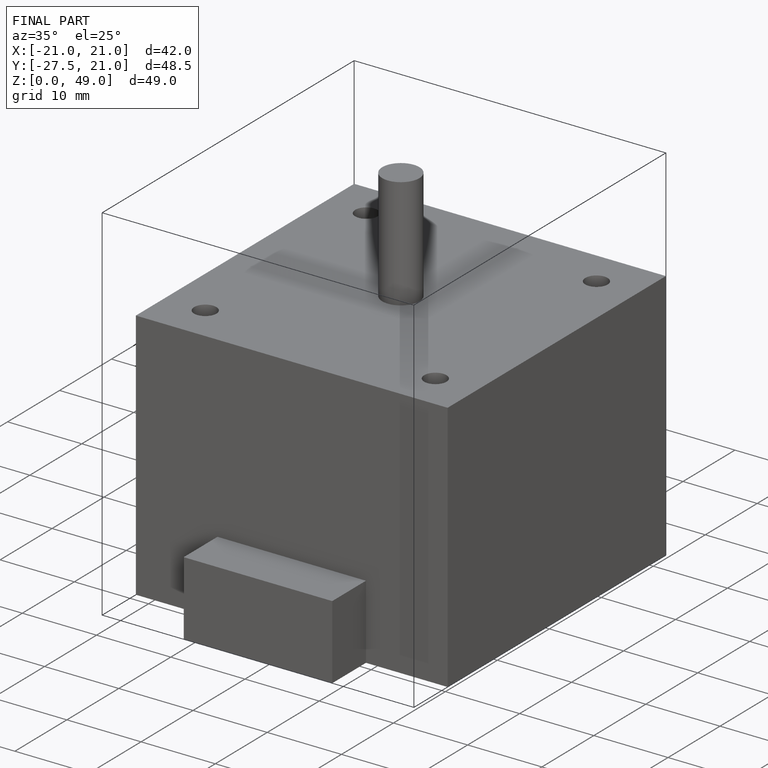
[diagram: finished part — iso view with bounding-box wireframe]
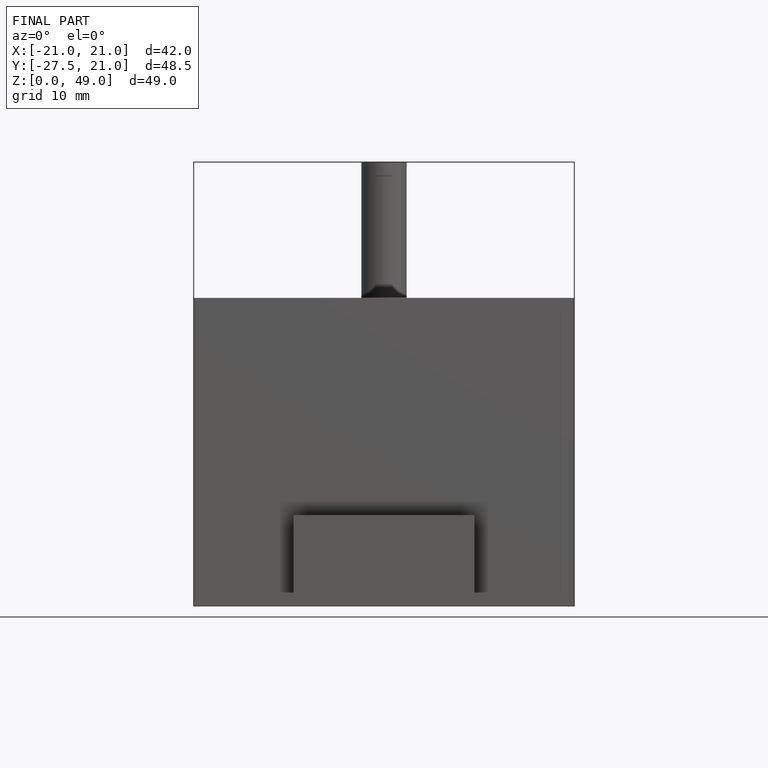
[diagram: finished part — front view with bounding-box wireframe]
